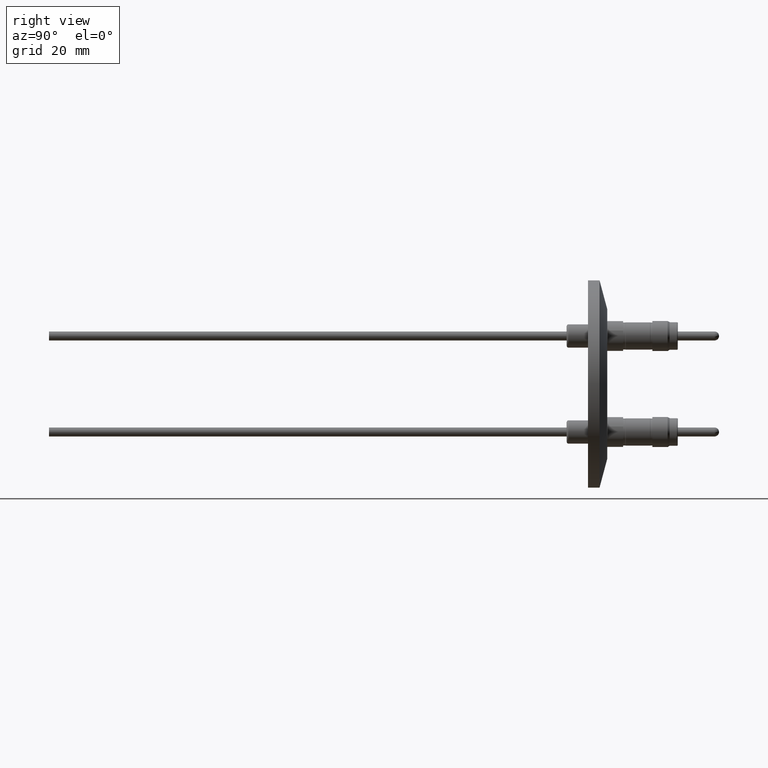
[diagram: clean part render]
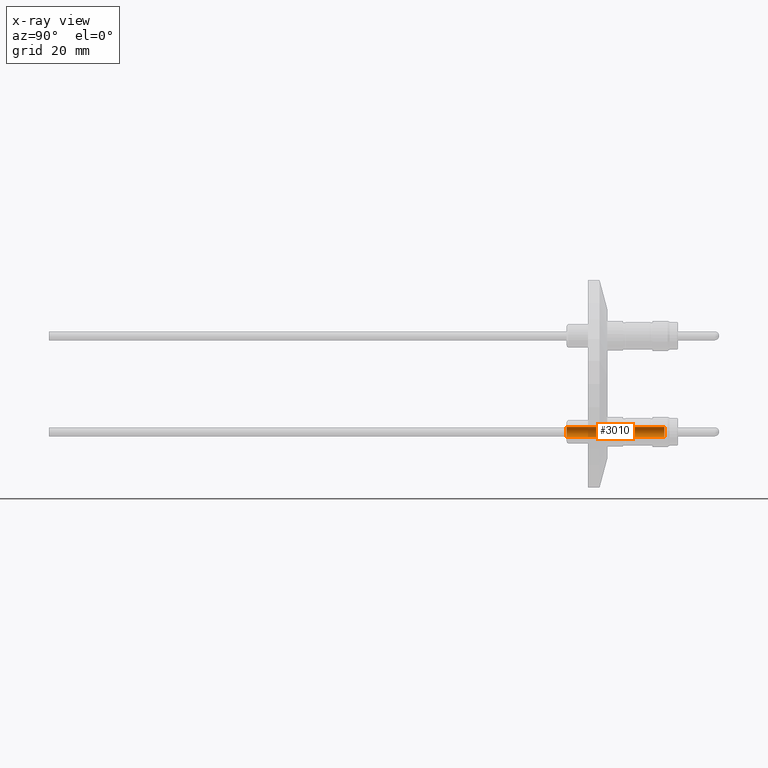
[diagram: x-ray — body ghosted, one internal face saturated and labeled with its STEP entity id]
A machine part, right view, then the same camera in x-ray: the body is ghosted and one INTERNAL B-rep face — a face not visible from any outside direction — is saturated and labeled: STEP entity #3010.
In plain terms, the highlighted cylindrical surface (edge-blend (fillet) strip) has radius 1.3335 mm, axis along (0, -1, 0).
Its self-contained STEP definition (entity closure, byte-faithful):
#5 = CARTESIAN_POINT ( 'NONE',  ( -3.916326672785474300E-015, -1.094712025527225800, -0.5524999999999987700 ) ) ;
#22 = DIRECTION ( 'NONE',  ( -7.027878518278863700E-015, 0.0000000000000000000, -1.000000000000000000 ) ) ;
#23 = DIRECTION ( 'NONE',  ( 1.139261799679164400E-016, -1.000000000000000000, 4.491584059259492700E-017 ) ) ;
#24 = CARTESIAN_POINT ( 'NONE',  ( -3.547363050575833700E-015, -1.094712025527225800, -0.4999999999999987800 ) ) ;
#74 = CARTESIAN_POINT ( 'NONE',  ( -3.694398474207973100E-015, -3.042712025527223300, -0.5524999999999986600 ) ) ;
#78 = DIRECTION ( 'NONE',  ( 1.139261799679164400E-016, -1.000000000000000000, 4.491584059259492700E-017 ) ) ;
#132 = DIRECTION ( 'NONE',  ( -7.027878518278863700E-015, 0.0000000000000000000, -1.000000000000000000 ) ) ;
#133 = DIRECTION ( 'NONE',  ( 1.139261799679164400E-016, -1.000000000000000000, 4.491584059259492700E-017 ) ) ;
#134 = CARTESIAN_POINT ( 'NONE',  ( -3.663225975603205000E-015, -0.07771202552722615600, -0.4999999999999987800 ) ) ;
#135 = CARTESIAN_POINT ( 'NONE',  ( -2.950041834093168700E-015, -3.042712025527223300, -0.4474999999999986200 ) ) ;
#140 = DIRECTION ( 'NONE',  ( 1.139261799679164400E-016, -1.000000000000000000, 4.491584059259492700E-017 ) ) ;
#224 = CARTESIAN_POINT ( 'NONE',  ( -3.229901495184355600E-015, -0.07771202552722615600, -0.4474999999999987900 ) ) ;
#316 = CIRCLE ( 'NONE', #1024, 0.05249999999999998400 ) ;
#341 = VECTOR ( 'NONE', #78, 39.37007874015748100 ) ;
#342 = LINE ( 'NONE', #74, #341 ) ;
#386 = EDGE_CURVE ( 'NONE', #622, #1886, #471, .T. ) ;
#387 = EDGE_CURVE ( 'NONE', #622, #1814, #472, .T. ) ;
#412 = EDGE_CURVE ( 'NONE', #1886, #591, #342, .T. ) ;
#430 = EDGE_CURVE ( 'NONE', #1814, #591, #316, .T. ) ;
#468 = VECTOR ( 'NONE', #140, 39.37007874015748100 ) ;
#471 = CIRCLE ( 'NONE', #1045, 0.05249999999999998400 ) ;
#472 = LINE ( 'NONE', #135, #468 ) ;
#534 = EDGE_LOOP ( 'NONE', ( #2269, #2244, #1787, #2148 ) ) ;
#591 = VERTEX_POINT ( 'NONE', #5 ) ;
#622 = VERTEX_POINT ( 'NONE', #224 ) ;
#805 = DIRECTION ( 'NONE',  ( 1.139261799679164400E-016, -1.000000000000000000, 4.491584059259492700E-017 ) ) ;
#1024 = AXIS2_PLACEMENT_3D ( 'NONE', #24, #23, #22 ) ;
#1045 = AXIS2_PLACEMENT_3D ( 'NONE', #134, #133, #132 ) ;
#1125 = CARTESIAN_POINT ( 'NONE',  ( -3.325434851998333000E-015, -3.042712025527223300, -0.4999999999999986100 ) ) ;
#1407 = CYLINDRICAL_SURFACE ( 'NONE', #2599, 0.05249999999999998400 ) ;
#1413 = FACE_OUTER_BOUND ( 'NONE', #534, .T. ) ;
#1678 = DIRECTION ( 'NONE',  ( -7.027878518278863700E-015, 0.0000000000000000000, -1.000000000000000000 ) ) ;
#1787 = ORIENTED_EDGE ( 'NONE', *, *, #430, .T. ) ;
#1814 = VERTEX_POINT ( 'NONE', #2777 ) ;
#1886 = VERTEX_POINT ( 'NONE', #2720 ) ;
#2148 = ORIENTED_EDGE ( 'NONE', *, *, #412, .F. ) ;
#2244 = ORIENTED_EDGE ( 'NONE', *, *, #387, .T. ) ;
#2269 = ORIENTED_EDGE ( 'NONE', *, *, #386, .F. ) ;
#2599 = AXIS2_PLACEMENT_3D ( 'NONE', #1125, #805, #1678 ) ;
#2720 = CARTESIAN_POINT ( 'NONE',  ( -4.032189597812845100E-015, -0.07771202552722615600, -0.5524999999999987700 ) ) ;
#2777 = CARTESIAN_POINT ( 'NONE',  ( -3.229901495184355600E-015, -1.094712025527225800, -0.4474999999999987900 ) ) ;
#3010 = ADVANCED_FACE ( 'NONE', ( #1413 ), #1407, .F. ) ;